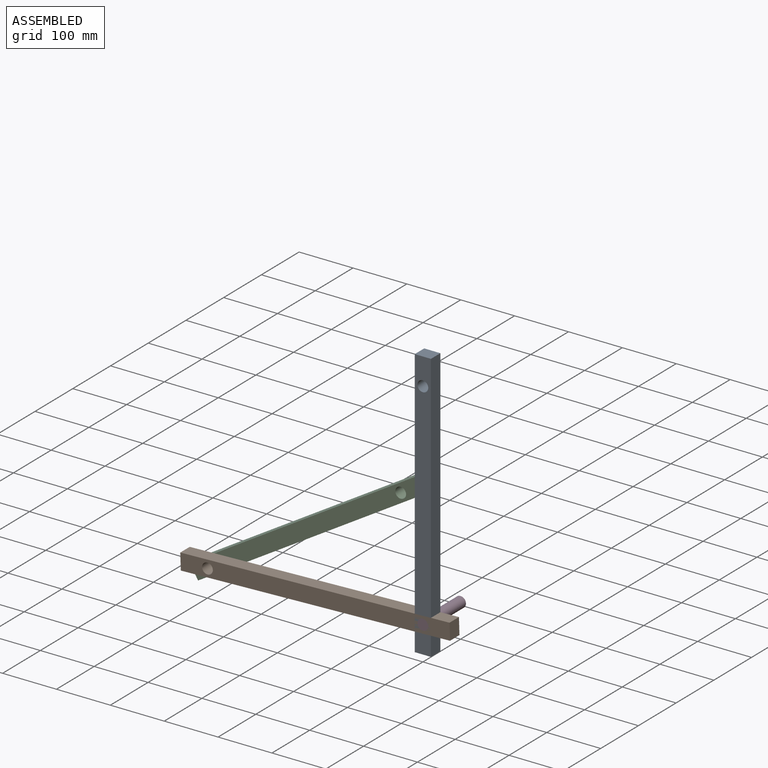
[diagram: assembled view]
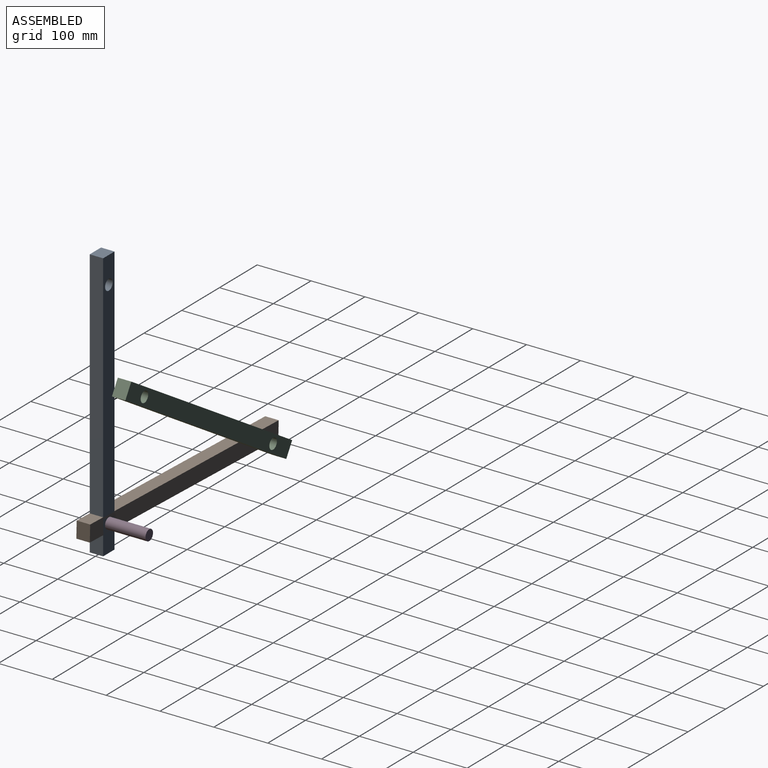
[diagram: assembled view, second angle]
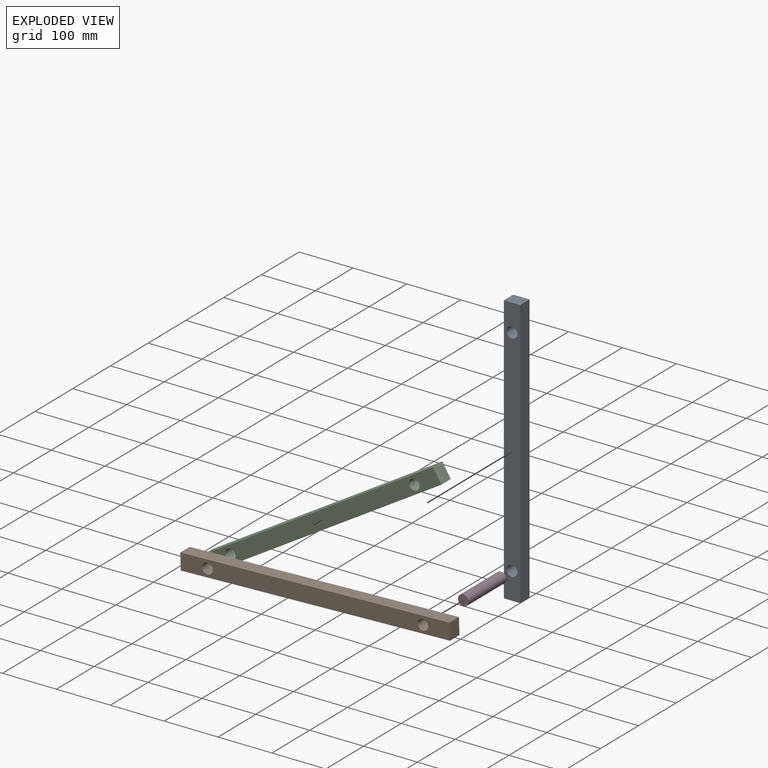
[diagram: exploded view]
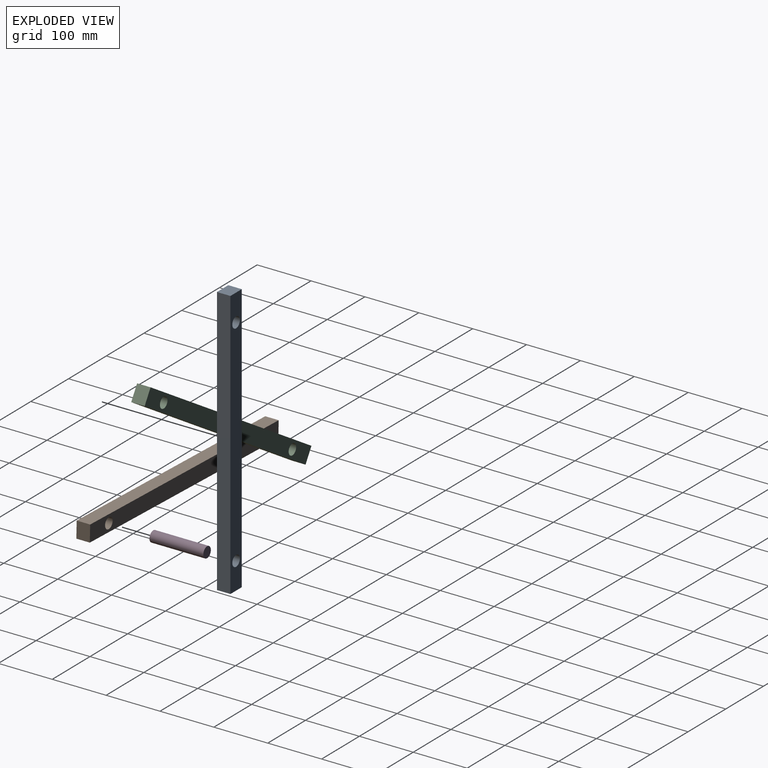
[diagram: exploded view, second angle]
ASSEMBLY  parts=4 mates=3
PART A: 8 faces, bbox 500x25x30 mm
  f0: plane 30x25mm, normal (1,0,0), area 750mm2, adj f2,f3,f4,f5
  f1: cylinder r=10mm len=25mm, axis (0,1,0), area 1570.8mm2, adj f2,f3
  f2: plane 500x30mm, normal (0,-1,0), area 14371.7mm2, adj f0,f1,f4,f5,f6,f7
  f3: plane 500x30mm, normal (0,1,0), area 14371.7mm2, adj f0,f1,f4,f5,f6,f7
  f4: plane 500x25mm, normal (0,0,-1), area 12500mm2, adj f0,f2,f3,f6
  f5: plane 500x25mm, normal (0,0,1), area 12500mm2, adj f0,f2,f3,f6
  f6: plane 30x25mm, normal (-1,0,0), area 750mm2, adj f2,f3,f4,f5
  f7: cylinder r=10mm len=25mm, axis (0,1,0), area 1570.8mm2, adj f2,f3
PART B: same geometry as A
PART C: same geometry as A
PART D: 3 faces, bbox 20x100x20 mm
  f0: cylinder r=10mm len=100mm, axis (0,1,0), area 6283.2mm2, adj f1,f2
  f1: plane 20x20mm, normal (0,-1,0), area 314.2mm2, adj f0
  f2: plane 20x20mm, normal (0,1,0), area 314.2mm2, adj f0
PLACE A rot(axis=(0,1,0),90deg) t=(0,-75,200)mm fixed
PLACE B rot(axis=(0,-1,0),1.8deg) t=(-199.9,-75,-6.35)mm
PLACE C rot(axis=(0,-1,0),31.5deg) t=(-229.22,-50,91.71)mm
PLACE D at identity
MATE revolute C.f7 <-> B.f7  axis (0,1,0) through (-399.8,-75,-12.7)mm
MATE revolute A.f1 <-> D.f0  axis (0,1,0) through (0,-100,0)mm
MATE revolute D.f0 <-> B.f1  axis (0,-1,0) through (0,-100,0)mm
